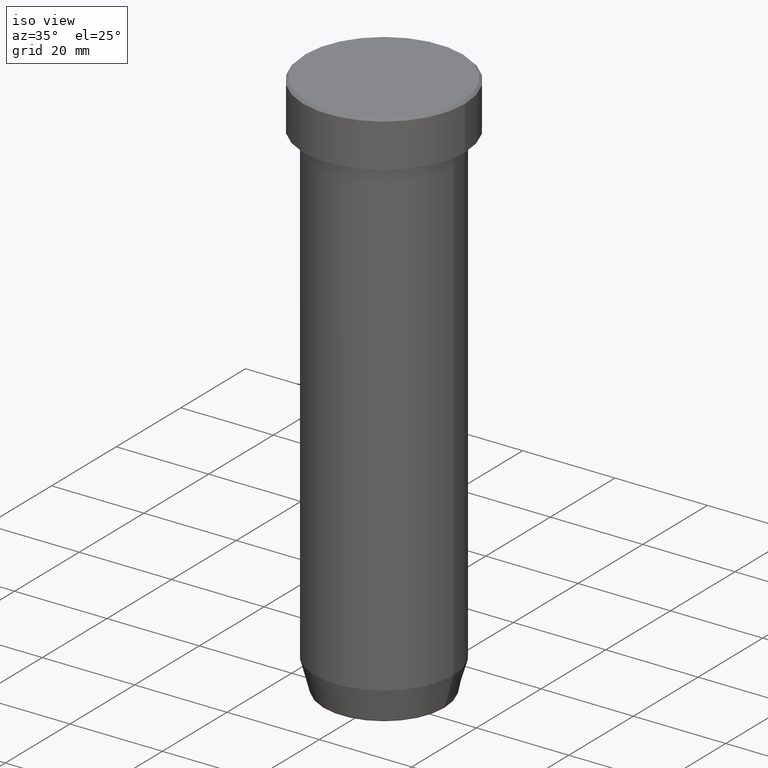
[diagram: clean part render]
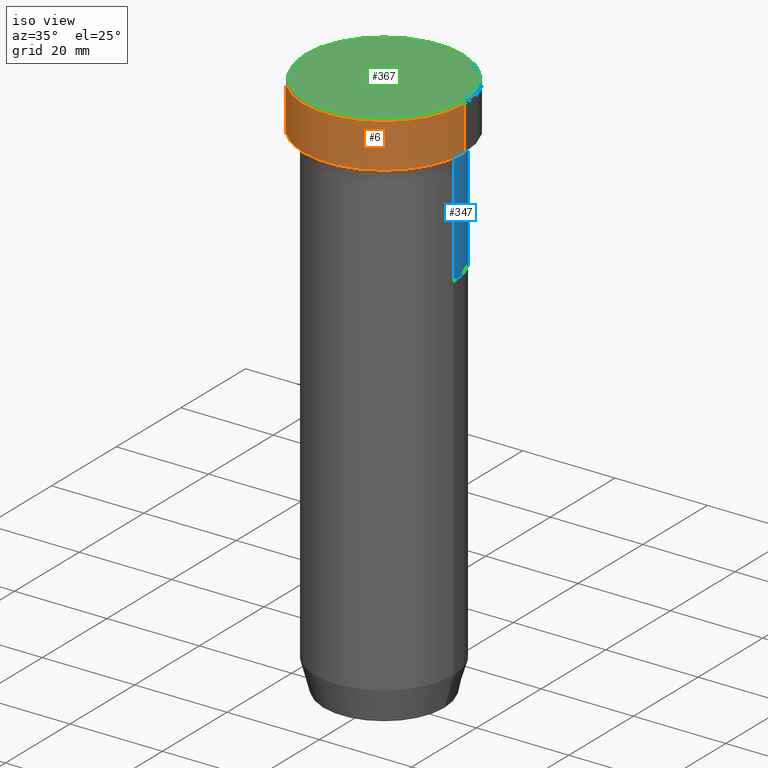
[diagram: same view with three faces highlighted in distinct colors, each labeled with its STEP entity id]
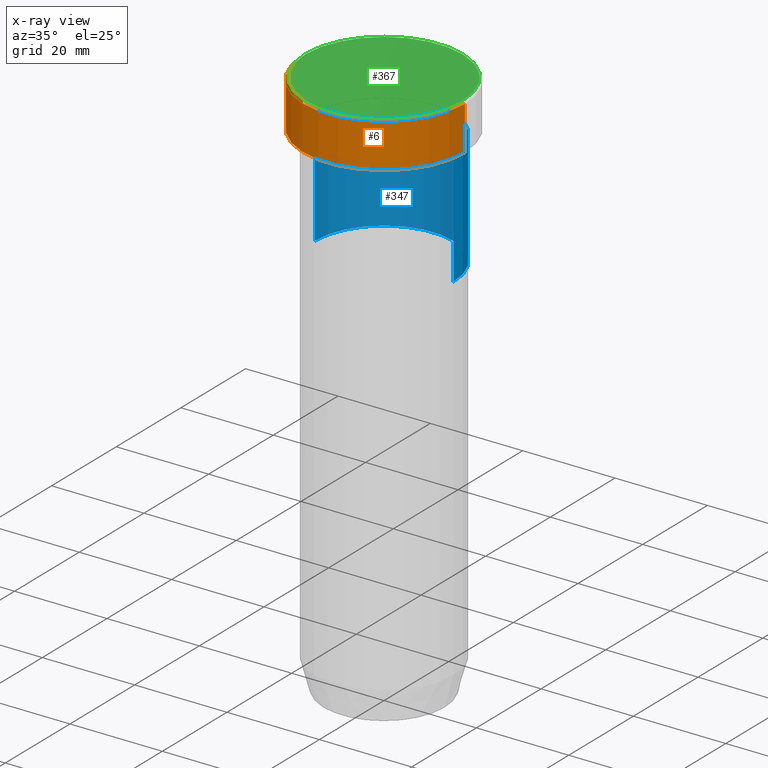
[diagram: x-ray of the same camera — body ghosted, the three highlighted faces saturated]
A machine part, iso view with three faces highlighted in distinct colors.
The next image is the same camera in x-ray (body ghosted, the three faces saturated) — at least one of them is partly hidden behind the body in this view.
Their STEP definitions:

[orange] entity #6 — the highlighted cylindrical surface (partial cylindrical patch) has radius 17.5 mm, axis along (-0, -0, 1).
#6 = ADVANCED_FACE ( 'NONE', ( #368 ), #462, .T. ) ;
#9 = CARTESIAN_POINT ( 'NONE',  ( 0.000000000000000000, 0.000000000000000000, -0.5000000000000073275 ) ) ;
#32 = ORIENTED_EDGE ( 'NONE', *, *, #292, .F. ) ;
#37 = VERTEX_POINT ( 'NONE', #85 ) ;
#51 = DIRECTION ( 'NONE',  ( 1.000000000000000000, 0.000000000000000000, 0.000000000000000000 ) ) ;
#85 = CARTESIAN_POINT ( 'NONE',  ( 17.50000000000000000, 0.000000000000000000, -9.999999999999998224 ) ) ;
#86 = DIRECTION ( 'NONE',  ( 1.000000000000000000, 0.000000000000000000, 0.000000000000000000 ) ) ;
#91 = EDGE_CURVE ( 'NONE', #102, #37, #394, .T. ) ;
#93 = CARTESIAN_POINT ( 'NONE',  ( -17.50000000000000000, 2.143131898507868248E-15, -0.5000000000000073275 ) ) ;
#102 = VERTEX_POINT ( 'NONE', #269 ) ;
#109 = ORIENTED_EDGE ( 'NONE', *, *, #91, .T. ) ;
#131 = DIRECTION ( 'NONE',  ( -0.000000000000000000, -0.000000000000000000, 1.000000000000000000 ) ) ;
#138 = VECTOR ( 'NONE', #494, 1000.000000000000000 ) ;
#148 = AXIS2_PLACEMENT_3D ( 'NONE', #217, #131, #499 ) ;
#152 = VERTEX_POINT ( 'NONE', #93 ) ;
#158 = LINE ( 'NONE', #422, #456 ) ;
#186 = DIRECTION ( 'NONE',  ( -0.000000000000000000, -0.000000000000000000, 1.000000000000000000 ) ) ;
#217 = CARTESIAN_POINT ( 'NONE',  ( 0.000000000000000000, 0.000000000000000000, 0.000000000000000000 ) ) ;
#250 = LINE ( 'NONE', #439, #138 ) ;
#269 = CARTESIAN_POINT ( 'NONE',  ( -17.50000000000000000, 2.143131898507868248E-15, -9.999999999999998224 ) ) ;
#292 = EDGE_CURVE ( 'NONE', #102, #152, #158, .T. ) ;
#317 = CARTESIAN_POINT ( 'NONE',  ( 0.000000000000000000, 0.000000000000000000, -9.999999999999998224 ) ) ;
#338 = EDGE_CURVE ( 'NONE', #593, #152, #343, .T. ) ;
#343 = CIRCLE ( 'NONE', #428, 17.50000000000000000 ) ;
#368 = FACE_OUTER_BOUND ( 'NONE', #578, .T. ) ;
#384 = AXIS2_PLACEMENT_3D ( 'NONE', #317, #506, #86 ) ;
#385 = ORIENTED_EDGE ( 'NONE', *, *, #416, .T. ) ;
#394 = CIRCLE ( 'NONE', #384, 17.50000000000000000 ) ;
#416 = EDGE_CURVE ( 'NONE', #37, #593, #250, .T. ) ;
#422 = CARTESIAN_POINT ( 'NONE',  ( -17.50000000000000000, 2.143131898507868248E-15, 0.000000000000000000 ) ) ;
#428 = AXIS2_PLACEMENT_3D ( 'NONE', #9, #467, #51 ) ;
#439 = CARTESIAN_POINT ( 'NONE',  ( 17.50000000000000000, 0.000000000000000000, 0.000000000000000000 ) ) ;
#456 = VECTOR ( 'NONE', #186, 1000.000000000000000 ) ;
#462 = CYLINDRICAL_SURFACE ( 'NONE', #148, 17.50000000000000000 ) ;
#467 = DIRECTION ( 'NONE',  ( 0.000000000000000000, 0.000000000000000000, -1.000000000000000000 ) ) ;
#492 = CARTESIAN_POINT ( 'NONE',  ( 17.50000000000000000, 0.000000000000000000, -0.5000000000000073275 ) ) ;
#494 = DIRECTION ( 'NONE',  ( -0.000000000000000000, -0.000000000000000000, 1.000000000000000000 ) ) ;
#499 = DIRECTION ( 'NONE',  ( 1.000000000000000000, 0.000000000000000000, 0.000000000000000000 ) ) ;
#506 = DIRECTION ( 'NONE',  ( -0.000000000000000000, -0.000000000000000000, 1.000000000000000000 ) ) ;
#578 = EDGE_LOOP ( 'NONE', ( #32, #109, #385, #590 ) ) ;
#590 = ORIENTED_EDGE ( 'NONE', *, *, #338, .T. ) ;
#593 = VERTEX_POINT ( 'NONE', #492 ) ;

[blue] entity #347 — the highlighted cylindrical surface (partial cylindrical patch) has radius 15 mm, axis along (-0, -0, 1).
#8 = LINE ( 'NONE', #46, #443 ) ;
#18 = DIRECTION ( 'NONE',  ( -0.000000000000000000, -0.000000000000000000, 1.000000000000000000 ) ) ;
#27 = AXIS2_PLACEMENT_3D ( 'NONE', #509, #90, #597 ) ;
#40 = AXIS2_PLACEMENT_3D ( 'NONE', #337, #572, #417 ) ;
#44 = EDGE_CURVE ( 'NONE', #157, #495, #176, .T. ) ;
#46 = CARTESIAN_POINT ( 'NONE',  ( 15.00000000000000000, 0.000000000000000000, 0.000000000000000000 ) ) ;
#50 = DIRECTION ( 'NONE',  ( -0.000000000000000000, -0.000000000000000000, 1.000000000000000000 ) ) ;
#60 = FACE_OUTER_BOUND ( 'NONE', #387, .T. ) ;
#65 = CARTESIAN_POINT ( 'NONE',  ( -15.00000000000000000, 1.836970198721029589E-15, -11.00000000000000000 ) ) ;
#90 = DIRECTION ( 'NONE',  ( -0.000000000000000000, -0.000000000000000000, 1.000000000000000000 ) ) ;
#94 = CARTESIAN_POINT ( 'NONE',  ( 15.00000000000000000, 0.000000000000000000, -36.00000000000000000 ) ) ;
#101 = CYLINDRICAL_SURFACE ( 'NONE', #40, 15.00000000000000000 ) ;
#120 = DIRECTION ( 'NONE',  ( 1.000000000000000000, 0.000000000000000000, 0.000000000000000000 ) ) ;
#130 = ORIENTED_EDGE ( 'NONE', *, *, #160, .F. ) ;
#154 = CARTESIAN_POINT ( 'NONE',  ( -15.00000000000000000, 1.836970198721029589E-15, -36.00000000000000000 ) ) ;
#157 = VERTEX_POINT ( 'NONE', #275 ) ;
#160 = EDGE_CURVE ( 'NONE', #236, #157, #8, .T. ) ;
#170 = ORIENTED_EDGE ( 'NONE', *, *, #44, .F. ) ;
#176 = CIRCLE ( 'NONE', #27, 15.00000000000000000 ) ;
#236 = VERTEX_POINT ( 'NONE', #94 ) ;
#243 = LINE ( 'NONE', #427, #262 ) ;
#262 = VECTOR ( 'NONE', #481, 1000.000000000000000 ) ;
#275 = CARTESIAN_POINT ( 'NONE',  ( 15.00000000000000000, 0.000000000000000000, -11.00000000000000000 ) ) ;
#337 = CARTESIAN_POINT ( 'NONE',  ( 0.000000000000000000, 0.000000000000000000, 0.000000000000000000 ) ) ;
#347 = ADVANCED_FACE ( 'NONE', ( #60 ), #101, .T. ) ;
#355 = AXIS2_PLACEMENT_3D ( 'NONE', #432, #18, #120 ) ;
#387 = EDGE_LOOP ( 'NONE', ( #548, #398, #170, #130 ) ) ;
#398 = ORIENTED_EDGE ( 'NONE', *, *, #541, .T. ) ;
#417 = DIRECTION ( 'NONE',  ( 1.000000000000000000, 0.000000000000000000, 0.000000000000000000 ) ) ;
#427 = CARTESIAN_POINT ( 'NONE',  ( -15.00000000000000000, 1.836970198721029589E-15, 0.000000000000000000 ) ) ;
#432 = CARTESIAN_POINT ( 'NONE',  ( 0.000000000000000000, 0.000000000000000000, -36.00000000000000000 ) ) ;
#443 = VECTOR ( 'NONE', #50, 1000.000000000000000 ) ;
#481 = DIRECTION ( 'NONE',  ( -0.000000000000000000, -0.000000000000000000, 1.000000000000000000 ) ) ;
#495 = VERTEX_POINT ( 'NONE', #65 ) ;
#500 = CIRCLE ( 'NONE', #355, 15.00000000000000000 ) ;
#505 = EDGE_CURVE ( 'NONE', #236, #575, #500, .T. ) ;
#509 = CARTESIAN_POINT ( 'NONE',  ( 0.000000000000000000, 0.000000000000000000, -11.00000000000000000 ) ) ;
#541 = EDGE_CURVE ( 'NONE', #575, #495, #243, .T. ) ;
#548 = ORIENTED_EDGE ( 'NONE', *, *, #505, .T. ) ;
#572 = DIRECTION ( 'NONE',  ( -0.000000000000000000, -0.000000000000000000, 1.000000000000000000 ) ) ;
#575 = VERTEX_POINT ( 'NONE', #154 ) ;
#597 = DIRECTION ( 'NONE',  ( 1.000000000000000000, 0.000000000000000000, 0.000000000000000000 ) ) ;

[green] entity #367 — the highlighted planar face has unit normal (0, -0, 1).
#16 = CIRCLE ( 'NONE', #95, 17.00000000000000000 ) ;
#20 = EDGE_LOOP ( 'NONE', ( #216, #122 ) ) ;
#63 = AXIS2_PLACEMENT_3D ( 'NONE', #232, #420, #197 ) ;
#95 = AXIS2_PLACEMENT_3D ( 'NONE', #280, #410, #511 ) ;
#108 = CIRCLE ( 'NONE', #315, 17.00000000000000000 ) ;
#122 = ORIENTED_EDGE ( 'NONE', *, *, #226, .T. ) ;
#150 = PLANE ( 'NONE',  #63 ) ;
#153 = FACE_OUTER_BOUND ( 'NONE', #20, .T. ) ;
#162 = DIRECTION ( 'NONE',  ( -0.000000000000000000, -0.000000000000000000, 1.000000000000000000 ) ) ;
#197 = DIRECTION ( 'NONE',  ( 1.000000000000000000, 0.000000000000000000, 0.000000000000000000 ) ) ;
#216 = ORIENTED_EDGE ( 'NONE', *, *, #512, .T. ) ;
#226 = EDGE_CURVE ( 'NONE', #339, #478, #16, .T. ) ;
#232 = CARTESIAN_POINT ( 'NONE',  ( 0.000000000000000000, 0.000000000000000000, 0.000000000000000000 ) ) ;
#280 = CARTESIAN_POINT ( 'NONE',  ( 0.000000000000000000, 0.000000000000000000, 0.000000000000000000 ) ) ;
#315 = AXIS2_PLACEMENT_3D ( 'NONE', #491, #162, #342 ) ;
#339 = VERTEX_POINT ( 'NONE', #566 ) ;
#342 = DIRECTION ( 'NONE',  ( 1.000000000000000000, 0.000000000000000000, 0.000000000000000000 ) ) ;
#367 = ADVANCED_FACE ( 'NONE', ( #153 ), #150, .T. ) ;
#410 = DIRECTION ( 'NONE',  ( -0.000000000000000000, -0.000000000000000000, 1.000000000000000000 ) ) ;
#420 = DIRECTION ( 'NONE',  ( 0.000000000000000000, -0.000000000000000000, 1.000000000000000000 ) ) ;
#478 = VERTEX_POINT ( 'NONE', #576 ) ;
#491 = CARTESIAN_POINT ( 'NONE',  ( 0.000000000000000000, 0.000000000000000000, 0.000000000000000000 ) ) ;
#511 = DIRECTION ( 'NONE',  ( 1.000000000000000000, 0.000000000000000000, 0.000000000000000000 ) ) ;
#512 = EDGE_CURVE ( 'NONE', #478, #339, #108, .T. ) ;
#566 = CARTESIAN_POINT ( 'NONE',  ( 17.00000000000000000, 2.112515728529184067E-15, 0.000000000000000000 ) ) ;
#576 = CARTESIAN_POINT ( 'NONE',  ( -17.00000000000000000, 0.000000000000000000, 0.000000000000000000 ) ) ;